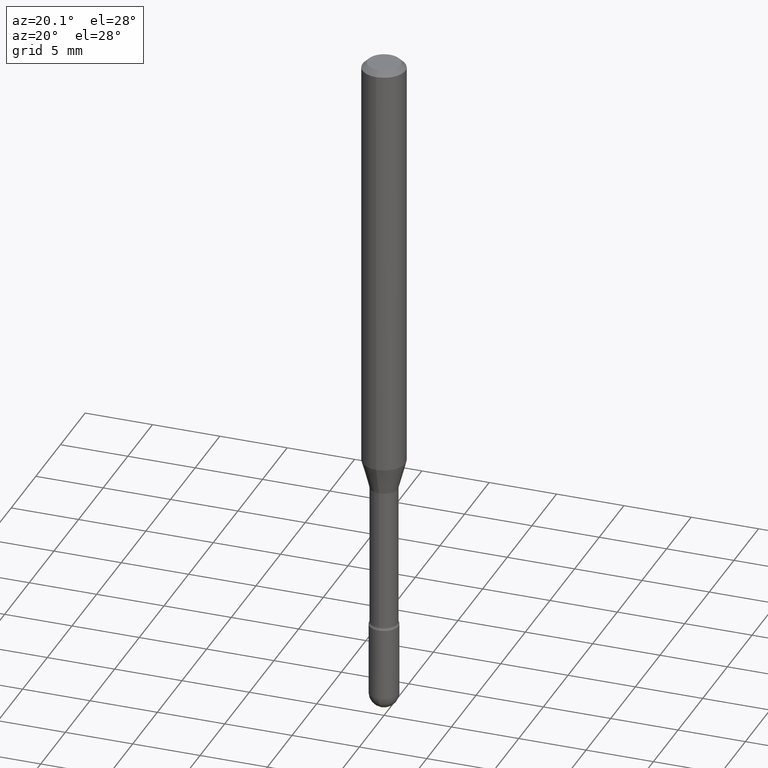
[diagram: clean part render]
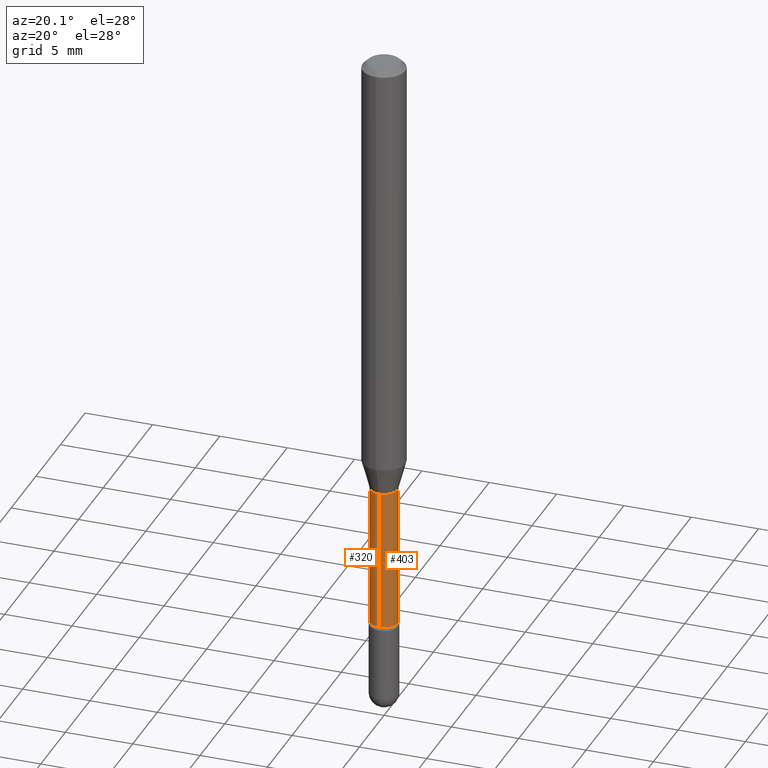
[diagram: same view with one multi-face feature highlighted, each face labeled with its STEP entity id]
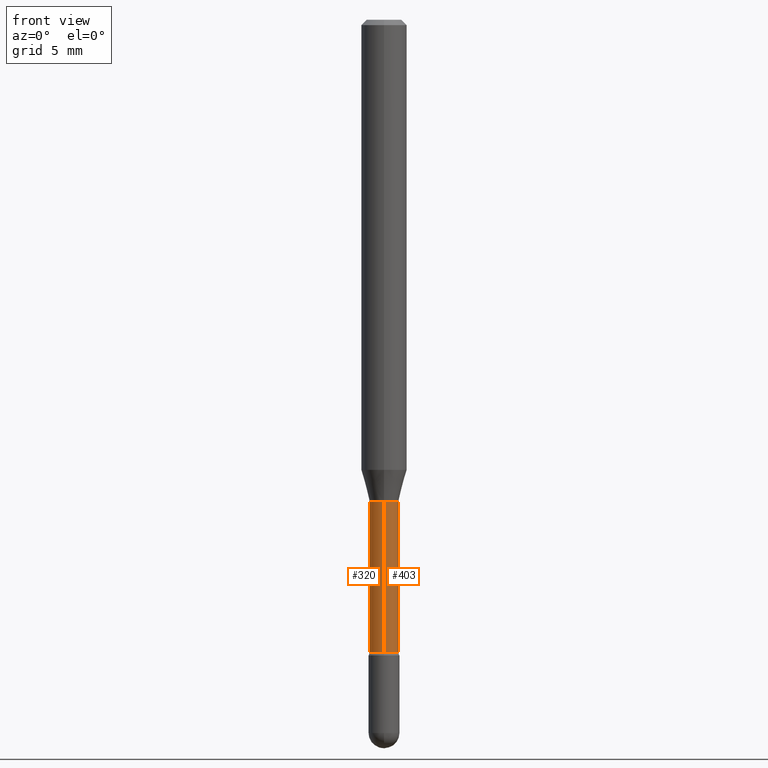
[diagram: same view with one multi-face feature highlighted, each face labeled with its STEP entity id]
A machine part, auxiliary view. The highlighted faces form ONE feature: a constant-radius fillet chain: 2 tangent blend faces with common blend radius 1.0147 mm. The faces share edges in the B-rep.
A second angle (front view) of the same feature is appended — it is thin or edge-on in the first view.
Their STEP definitions:
[1] entity #320 (Cylinder):
#26 = CYLINDRICAL_SURFACE ( 'NONE', #250, 0.03995000000000003409 ) ;
#33 = VERTEX_POINT ( 'NONE', #276 ) ;
#34 = DIRECTION ( 'NONE',  ( -6.982962677686265922E-15, -1.000000000000000000, 6.838167693777870716E-15 ) ) ;
#37 = EDGE_CURVE ( 'NONE', #205, #33, #361, .T. ) ;
#61 = EDGE_CURVE ( 'NONE', #385, #33, #550, .T. ) ;
#99 = DIRECTION ( 'NONE',  ( -6.982962677686265133E-15, -1.000000000000000000, 6.838167693777879394E-15 ) ) ;
#119 = AXIS2_PLACEMENT_3D ( 'NONE', #532, #528, #99 ) ;
#128 = EDGE_CURVE ( 'NONE', #469, #385, #409, .T. ) ;
#135 = ORIENTED_EDGE ( 'NONE', *, *, #128, .F. ) ;
#145 = CARTESIAN_POINT ( 'NONE',  ( -2.789693589735665255E-16, -0.03995000000000003409, 6.175573181930600695E-16 ) ) ;
#166 = ORIENTED_EDGE ( 'NONE', *, *, #61, .F. ) ;
#174 = DIRECTION ( 'NONE',  ( -2.445482093652650553E-29, 3.491462310433390042E-15, 1.000000000000000000 ) ) ;
#176 = VECTOR ( 'NONE', #523, 39.37007874015748143 ) ;
#196 = CARTESIAN_POINT ( 'NONE',  ( 2.929212428171439828E-16, 0.03994999999999399726, -1.736633549139569910 ) ) ;
#205 = VERTEX_POINT ( 'NONE', #370 ) ;
#209 = CARTESIAN_POINT ( 'NONE',  ( 2.838618229362026185E-16, 0.03994999999999538504, -1.321974787463811474 ) ) ;
#215 = CARTESIAN_POINT ( 'NONE',  ( 4.246906247657268007E-29, -6.063390583854980226E-15, -1.736633549139569688 ) ) ;
#220 = CARTESIAN_POINT ( 'NONE',  ( -1.169113584055446105E-44, 1.669184350826100908E-30, 4.780733988912460139E-16 ) ) ;
#245 = CARTESIAN_POINT ( 'NONE',  ( 2.838618229361602172E-16, 0.03995000000000003409, 3.385894795894320077E-16 ) ) ;
#250 = AXIS2_PLACEMENT_3D ( 'NONE', #220, #174, #343 ) ;
#260 = FACE_OUTER_BOUND ( 'NONE', #295, .T. ) ;
#276 = CARTESIAN_POINT ( 'NONE',  ( -2.789693589735340343E-16, -0.03995000000000462764, -1.321974787463810808 ) ) ;
#295 = EDGE_LOOP ( 'NONE', ( #135, #449, #305, #166 ) ) ;
#296 = EDGE_CURVE ( 'NONE', #469, #205, #399, .T. ) ;
#305 = ORIENTED_EDGE ( 'NONE', *, *, #37, .T. ) ;
#317 = VECTOR ( 'NONE', #418, 39.37007874015748143 ) ;
#320 = ADVANCED_FACE ( 'NONE', ( #260 ), #26, .T. ) ;
#343 = DIRECTION ( 'NONE',  ( -6.982962677686265133E-15, -1.000000000000000000, 3.491462310433388464E-15 ) ) ;
#361 = LINE ( 'NONE', #145, #176 ) ;
#370 = CARTESIAN_POINT ( 'NONE',  ( -2.789693589735242721E-16, -0.03995000000000611950, -1.736633549139569244 ) ) ;
#385 = VERTEX_POINT ( 'NONE', #209 ) ;
#399 = CIRCLE ( 'NONE', #452, 0.03995000000000005491 ) ;
#409 = LINE ( 'NONE', #245, #317 ) ;
#418 = DIRECTION ( 'NONE',  ( -2.445482093652650834E-29, 3.491462310433390042E-15, 1.000000000000000000 ) ) ;
#449 = ORIENTED_EDGE ( 'NONE', *, *, #296, .T. ) ;
#452 = AXIS2_PLACEMENT_3D ( 'NONE', #215, #471, #34 ) ;
#469 = VERTEX_POINT ( 'NONE', #196 ) ;
#471 = DIRECTION ( 'NONE',  ( -2.445482093652650553E-29, 3.491462310433390042E-15, 1.000000000000000000 ) ) ;
#523 = DIRECTION ( 'NONE',  ( -2.445482093652650834E-29, 3.491462310433390042E-15, 1.000000000000000000 ) ) ;
#528 = DIRECTION ( 'NONE',  ( -2.445482093652650553E-29, 3.491462310433390042E-15, 1.000000000000000000 ) ) ;
#532 = CARTESIAN_POINT ( 'NONE',  ( 3.232865671003018680E-29, -4.615625145773088922E-15, -1.321974787463811252 ) ) ;
#550 = CIRCLE ( 'NONE', #119, 0.03995000000000000634 ) ;
[2] entity #403 (Cylinder):
#1 = AXIS2_PLACEMENT_3D ( 'NONE', #249, #113, #322 ) ;
#21 = AXIS2_PLACEMENT_3D ( 'NONE', #123, #560, #178 ) ;
#33 = VERTEX_POINT ( 'NONE', #276 ) ;
#37 = EDGE_CURVE ( 'NONE', #205, #33, #361, .T. ) ;
#40 = AXIS2_PLACEMENT_3D ( 'NONE', #412, #67, #291 ) ;
#67 = DIRECTION ( 'NONE',  ( -2.445482093652650553E-29, 3.491462310433390042E-15, 1.000000000000000000 ) ) ;
#113 = DIRECTION ( 'NONE',  ( -2.445482093652650553E-29, 3.491462310433390042E-15, 1.000000000000000000 ) ) ;
#123 = CARTESIAN_POINT ( 'NONE',  ( -1.169113584055446105E-44, 1.669184350826100908E-30, 4.780733988912460139E-16 ) ) ;
#128 = EDGE_CURVE ( 'NONE', #469, #385, #409, .T. ) ;
#138 = EDGE_CURVE ( 'NONE', #33, #385, #256, .T. ) ;
#145 = CARTESIAN_POINT ( 'NONE',  ( -2.789693589735665255E-16, -0.03995000000000003409, 6.175573181930600695E-16 ) ) ;
#176 = VECTOR ( 'NONE', #523, 39.37007874015748143 ) ;
#178 = DIRECTION ( 'NONE',  ( -6.982962677686265133E-15, -1.000000000000000000, 3.491462310433388464E-15 ) ) ;
#179 = ORIENTED_EDGE ( 'NONE', *, *, #37, .F. ) ;
#196 = CARTESIAN_POINT ( 'NONE',  ( 2.929212428171439828E-16, 0.03994999999999399726, -1.736633549139569910 ) ) ;
#205 = VERTEX_POINT ( 'NONE', #370 ) ;
#209 = CARTESIAN_POINT ( 'NONE',  ( 2.838618229362026185E-16, 0.03994999999999538504, -1.321974787463811474 ) ) ;
#224 = EDGE_CURVE ( 'NONE', #205, #469, #470, .T. ) ;
#245 = CARTESIAN_POINT ( 'NONE',  ( 2.838618229361602172E-16, 0.03995000000000003409, 3.385894795894320077E-16 ) ) ;
#249 = CARTESIAN_POINT ( 'NONE',  ( 3.232865671003018680E-29, -4.615625145773088922E-15, -1.321974787463811252 ) ) ;
#256 = CIRCLE ( 'NONE', #1, 0.03995000000000000634 ) ;
#276 = CARTESIAN_POINT ( 'NONE',  ( -2.789693589735340343E-16, -0.03995000000000462764, -1.321974787463810808 ) ) ;
#291 = DIRECTION ( 'NONE',  ( -6.982962677686265922E-15, -1.000000000000000000, 6.838167693777870716E-15 ) ) ;
#317 = VECTOR ( 'NONE', #418, 39.37007874015748143 ) ;
#322 = DIRECTION ( 'NONE',  ( -6.982962677686265133E-15, -1.000000000000000000, 6.838167693777879394E-15 ) ) ;
#342 = ORIENTED_EDGE ( 'NONE', *, *, #224, .T. ) ;
#361 = LINE ( 'NONE', #145, #176 ) ;
#370 = CARTESIAN_POINT ( 'NONE',  ( -2.789693589735242721E-16, -0.03995000000000611950, -1.736633549139569244 ) ) ;
#385 = VERTEX_POINT ( 'NONE', #209 ) ;
#403 = ADVANCED_FACE ( 'NONE', ( #464 ), #509, .T. ) ;
#409 = LINE ( 'NONE', #245, #317 ) ;
#412 = CARTESIAN_POINT ( 'NONE',  ( 4.246906247657268007E-29, -6.063390583854980226E-15, -1.736633549139569688 ) ) ;
#418 = DIRECTION ( 'NONE',  ( -2.445482093652650834E-29, 3.491462310433390042E-15, 1.000000000000000000 ) ) ;
#457 = ORIENTED_EDGE ( 'NONE', *, *, #138, .F. ) ;
#460 = ORIENTED_EDGE ( 'NONE', *, *, #128, .T. ) ;
#464 = FACE_OUTER_BOUND ( 'NONE', #465, .T. ) ;
#465 = EDGE_LOOP ( 'NONE', ( #342, #460, #457, #179 ) ) ;
#469 = VERTEX_POINT ( 'NONE', #196 ) ;
#470 = CIRCLE ( 'NONE', #40, 0.03995000000000005491 ) ;
#509 = CYLINDRICAL_SURFACE ( 'NONE', #21, 0.03995000000000003409 ) ;
#523 = DIRECTION ( 'NONE',  ( -2.445482093652650834E-29, 3.491462310433390042E-15, 1.000000000000000000 ) ) ;
#560 = DIRECTION ( 'NONE',  ( -2.445482093652650553E-29, 3.491462310433390042E-15, 1.000000000000000000 ) ) ;